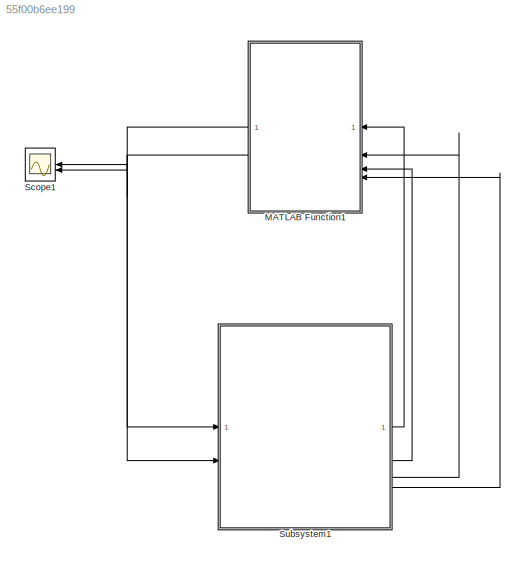
MODEL slx_55f00b6ee199
KIND model
CONFIG AbsTol = 1e-3
CONFIG EnableMultiTasking = on
CONFIG FixedStep = auto
CONFIG MaxStep = 1/60
CONFIG MinStep = auto
CONFIG RelTol = 1e-3
CONFIG SampleTimeConstraint = Unconstrained
CONFIG SolverName = VariableStepAuto
CONFIG StartTime = 0.0
CONFIG StopTime = 10.0
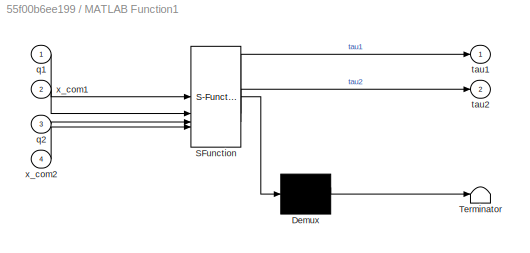
BLOCK [SubSystem] MATLAB Function1
  ErrorFcn = Stateflow.Translate.translate
  LibrarySourceBlock = simulink/User-Defined\nFunctions/MATLAB Function
  PermitHierarchicalResolution = ExplicitOnly
  SFBlockType = MATLAB Function
  TreatAsAtomicUnit = on
BLOCK [Demux] MATLAB Function1/ Demux 
  Outputs = 1
BLOCK [S-Function] MATLAB Function1/ SFunction 
  EnableBusSupport = on
  FunctionName = sf_sfun
  PortCounts = [4 3]
  SFcnIsStateOwnerBlock = off
  SFunctionDeploymentMode = off
  Tag = Stateflow S-Function 1
BLOCK [Terminator] MATLAB Function1/ Terminator 
BLOCK [Inport] MATLAB Function1/q1
BLOCK [Inport] MATLAB Function1/q2
  Port = 3
BLOCK [Outport] MATLAB Function1/tau1
BLOCK [Outport] MATLAB Function1/tau2
  Port = 2
BLOCK [Inport] MATLAB Function1/x_com1
  Port = 2
BLOCK [Inport] MATLAB Function1/x_com2
  Port = 4
BLOCK [Scope] Scope1
  Floating = off
  NumInputPorts = 2
  ScopeSpecificationString = Simulink.scopes.TimeScopeBlockCfg('CurrentConfiguration', extmgr.ConfigurationSet(extmgr.Configuration('Core','General UI',true),extmgr.Configuration('Core','Source UI',true),extmgr.Configuration('Sources','WiredSimulink',true,'DataLoggingVariableName','ScopeData1'),extmgr.Configuration('Visuals','Time Domain',true,'SerializedDisplays',{struct('MinYLimReal','-889.57867','MaxYLimReal','-106.06189',...<+1447ch>
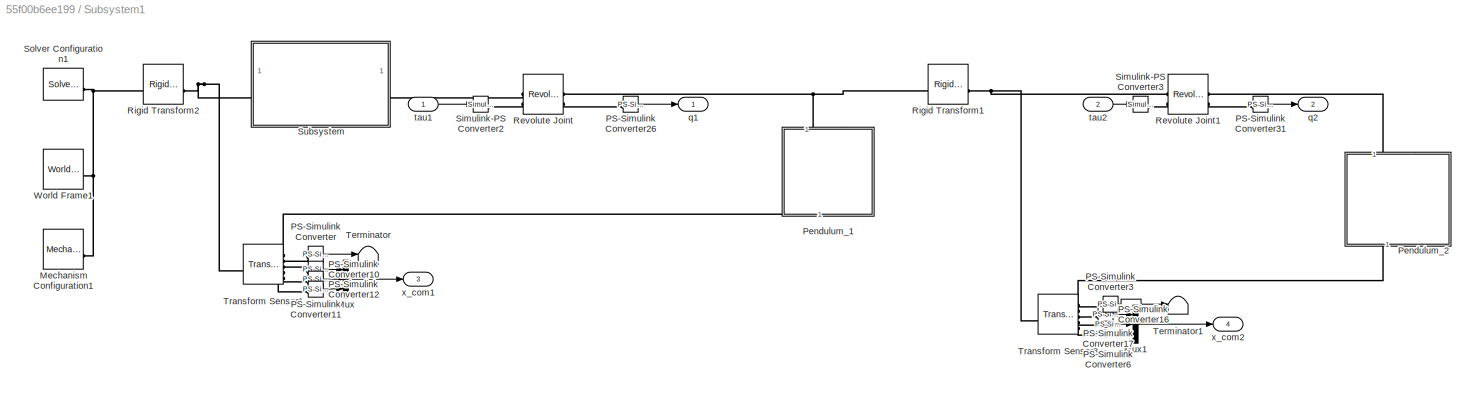
BLOCK [SubSystem] Subsystem1
BLOCK [Reference] Subsystem1/Mechanism Configuration1  REF=sm_lib/Utilities/Mechanism
Configuration
  SourceBlock = sm_lib/Utilities/Mechanism\nConfiguration
  SourceType = Mechanism\nConfiguration
BLOCK [Mux] Subsystem1/Mux
  DisplayOption = bar
  Inputs = 3
BLOCK [Mux] Subsystem1/Mux1
  DisplayOption = bar
  Inputs = 3
BLOCK [Reference] Subsystem1/PS-Simulink Converter  REF=nesl_utility/PS-Simulink
Converter
  SourceBlock = nesl_utility/PS-Simulink\nConverter
  SourceType = PS-Simulink\nConverter
BLOCK [Reference] Subsystem1/PS-Simulink Converter10  REF=nesl_utility/PS-Simulink
Converter
  SourceBlock = nesl_utility/PS-Simulink\nConverter
  SourceType = PS-Simulink\nConverter
BLOCK [Reference] Subsystem1/PS-Simulink Converter11  REF=nesl_utility/PS-Simulink
Converter
  SourceBlock = nesl_utility/PS-Simulink\nConverter
  SourceType = PS-Simulink\nConverter
BLOCK [Reference] Subsystem1/PS-Simulink Converter12  REF=nesl_utility/PS-Simulink
Converter
  SourceBlock = nesl_utility/PS-Simulink\nConverter
  SourceType = PS-Simulink\nConverter
BLOCK [Reference] Subsystem1/PS-Simulink Converter16  REF=nesl_utility/PS-Simulink
Converter
  SourceBlock = nesl_utility/PS-Simulink\nConverter
  SourceType = PS-Simulink\nConverter
BLOCK [Reference] Subsystem1/PS-Simulink Converter17  REF=nesl_utility/PS-Simulink
Converter
  SourceBlock = nesl_utility/PS-Simulink\nConverter
  SourceType = PS-Simulink\nConverter
BLOCK [Reference] Subsystem1/PS-Simulink Converter26  REF=nesl_utility/PS-Simulink
Converter
  SourceBlock = nesl_utility/PS-Simulink\nConverter
  SourceType = PS-Simulink\nConverter
BLOCK [Reference] Subsystem1/PS-Simulink Converter3  REF=nesl_utility/PS-Simulink
Converter
  SourceBlock = nesl_utility/PS-Simulink\nConverter
  SourceType = PS-Simulink\nConverter
BLOCK [Reference] Subsystem1/PS-Simulink Converter31  REF=nesl_utility/PS-Simulink
Converter
  SourceBlock = nesl_utility/PS-Simulink\nConverter
  SourceType = PS-Simulink\nConverter
BLOCK [Reference] Subsystem1/PS-Simulink Converter6  REF=nesl_utility/PS-Simulink
Converter
  SourceBlock = nesl_utility/PS-Simulink\nConverter
  SourceType = PS-Simulink\nConverter
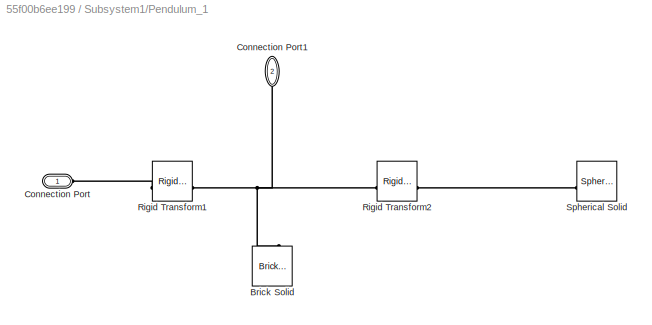
BLOCK [SubSystem] Subsystem1/Pendulum_1
  NameLocation = left
BLOCK [Reference] Subsystem1/Pendulum_1/Brick Solid  REF=sm_lib/Body Elements/Brick Solid
  NameLocation = right
  SourceBlock = sm_lib/Body Elements/Brick Solid
  SourceType = Brick Solid
BLOCK [PMIOPort] Subsystem1/Pendulum_1/Connection Port
  Side = Left
BLOCK [PMIOPort] Subsystem1/Pendulum_1/Connection Port1
  NameLocation = left
  Port = 2
  Side = Right
BLOCK [Reference] Subsystem1/Pendulum_1/Rigid Transform1  REF=sm_lib/Frames and
Transforms/Rigid
Transform
  SourceBlock = sm_lib/Frames and\nTransforms/Rigid\nTransform
  SourceType = Rigid\nTransform
BLOCK [Reference] Subsystem1/Pendulum_1/Rigid Transform2  REF=sm_lib/Frames and
Transforms/Rigid
Transform
  SourceBlock = sm_lib/Frames and\nTransforms/Rigid\nTransform
  SourceType = Rigid\nTransform
BLOCK [Reference] Subsystem1/Pendulum_1/Spherical Solid  REF=sm_lib/Body Elements/Spherical Solid
  SourceBlock = sm_lib/Body Elements/Spherical Solid
  SourceType = Spherical Solid
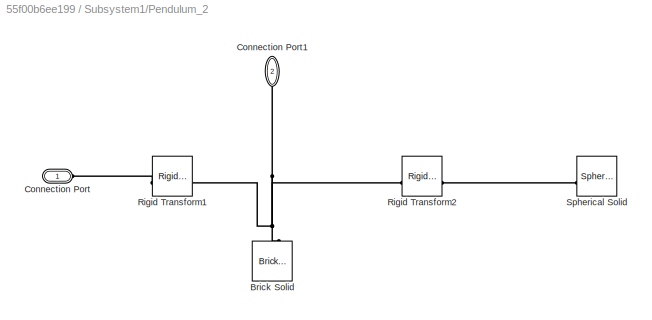
BLOCK [SubSystem] Subsystem1/Pendulum_2
  NameLocation = left
BLOCK [Reference] Subsystem1/Pendulum_2/Brick Solid  REF=sm_lib/Body Elements/Brick Solid
  NameLocation = right
  SourceBlock = sm_lib/Body Elements/Brick Solid
  SourceType = Brick Solid
BLOCK [PMIOPort] Subsystem1/Pendulum_2/Connection Port
  Side = Left
BLOCK [PMIOPort] Subsystem1/Pendulum_2/Connection Port1
  NameLocation = left
  Port = 2
  Side = Right
BLOCK [Reference] Subsystem1/Pendulum_2/Rigid Transform1  REF=sm_lib/Frames and
Transforms/Rigid
Transform
  SourceBlock = sm_lib/Frames and\nTransforms/Rigid\nTransform
  SourceType = Rigid\nTransform
BLOCK [Reference] Subsystem1/Pendulum_2/Rigid Transform2  REF=sm_lib/Frames and
Transforms/Rigid
Transform
  SourceBlock = sm_lib/Frames and\nTransforms/Rigid\nTransform
  SourceType = Rigid\nTransform
BLOCK [Reference] Subsystem1/Pendulum_2/Spherical Solid  REF=sm_lib/Body Elements/Spherical Solid
  SourceBlock = sm_lib/Body Elements/Spherical Solid
  SourceType = Spherical Solid
BLOCK [Reference] Subsystem1/Revolute Joint  REF=sm_lib/Joints/Revolute Joint
  SourceBlock = sm_lib/Joints/Revolute Joint
  SourceType = Revolute Joint
BLOCK [Reference] Subsystem1/Revolute Joint1  REF=sm_lib/Joints/Revolute Joint
  SourceBlock = sm_lib/Joints/Revolute Joint
  SourceType = Revolute Joint
BLOCK [Reference] Subsystem1/Rigid Transform1  REF=sm_lib/Frames and
Transforms/Rigid
Transform
  SourceBlock = sm_lib/Frames and\nTransforms/Rigid\nTransform
  SourceType = Rigid\nTransform
BLOCK [Reference] Subsystem1/Rigid Transform2  REF=sm_lib/Frames and
Transforms/Rigid
Transform
  SourceBlock = sm_lib/Frames and\nTransforms/Rigid\nTransform
  SourceType = Rigid\nTransform
BLOCK [Reference] Subsystem1/Simulink-PS Converter2  REF=nesl_utility/Simulink-PS
Converter
  SourceBlock = nesl_utility/Simulink-PS\nConverter
  SourceType = Simulink-PS\nConverter
BLOCK [Reference] Subsystem1/Simulink-PS Converter3  REF=nesl_utility/Simulink-PS
Converter
  SourceBlock = nesl_utility/Simulink-PS\nConverter
  SourceType = Simulink-PS\nConverter
BLOCK [Reference] Subsystem1/Solver Configuration1  REF=nesl_utility/Solver
Configuration
  SourceBlock = nesl_utility/Solver\nConfiguration
  SourceType = Solver\nConfiguration
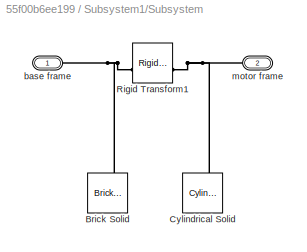
BLOCK [SubSystem] Subsystem1/Subsystem
BLOCK [Reference] Subsystem1/Subsystem/Brick Solid  REF=sm_lib/Body Elements/Brick Solid
  SourceBlock = sm_lib/Body Elements/Brick Solid
  SourceType = Brick Solid
BLOCK [Reference] Subsystem1/Subsystem/Cylindrical Solid  REF=sm_lib/Body Elements/Cylindrical Solid
  NameLocation = right
  SourceBlock = sm_lib/Body Elements/Cylindrical Solid
  SourceType = Cylindrical Solid
BLOCK [Reference] Subsystem1/Subsystem/Rigid Transform1  REF=sm_lib/Frames and
Transforms/Rigid
Transform
  SourceBlock = sm_lib/Frames and\nTransforms/Rigid\nTransform
  SourceType = Rigid\nTransform
BLOCK [PMIOPort] Subsystem1/Subsystem/base frame
  Side = Left
BLOCK [PMIOPort] Subsystem1/Subsystem/motor frame
  Port = 2
  Side = Right
BLOCK [Terminator] Subsystem1/Terminator
BLOCK [Terminator] Subsystem1/Terminator1
BLOCK [Reference] Subsystem1/Transform Sensor1  REF=sm_lib/Frames and
Transforms/Transform
Sensor
  SourceBlock = sm_lib/Frames and\nTransforms/Transform\nSensor
  SourceType = Transform\nSensor
BLOCK [Reference] Subsystem1/Transform Sensor3  REF=sm_lib/Frames and
Transforms/Transform
Sensor
  SourceBlock = sm_lib/Frames and\nTransforms/Transform\nSensor
  SourceType = Transform\nSensor
BLOCK [Reference] Subsystem1/World Frame1  REF=sm_lib/Frames and
Transforms/World Frame
  SourceBlock = sm_lib/Frames and\nTransforms/World Frame
  SourceType = World Frame
BLOCK [Outport] Subsystem1/q1
BLOCK [Outport] Subsystem1/q2
  Port = 2
BLOCK [Inport] Subsystem1/tau1
BLOCK [Inport] Subsystem1/tau2
  Port = 2
BLOCK [Outport] Subsystem1/x_com1
  Port = 3
BLOCK [Outport] Subsystem1/x_com2
  Port = 4
NET MATLAB Function1:1 -> Scope1:1, Subsystem1:1
NET MATLAB Function1:2 -> Scope1:2, Subsystem1:2
LINE Subsystem1/Mux1:1 -> Subsystem1/x_com2:1
LINE Subsystem1/Mux:1 -> Subsystem1/x_com1:1
LINE Subsystem1/PS-Simulink Converter10:1 -> Subsystem1/Mux:1
LINE Subsystem1/PS-Simulink Converter11:1 -> Subsystem1/Mux:2
LINE Subsystem1/PS-Simulink Converter12:1 -> Subsystem1/Mux:3
LINE Subsystem1/PS-Simulink Converter16:1 -> Subsystem1/Mux1:1
LINE Subsystem1/PS-Simulink Converter17:1 -> Subsystem1/Mux1:2
LINE Subsystem1/PS-Simulink Converter26:1 -> Subsystem1/q1:1
LINE Subsystem1/PS-Simulink Converter31:1 -> Subsystem1/q2:1
LINE Subsystem1/PS-Simulink Converter3:1 -> Subsystem1/Terminator1:1
LINE Subsystem1/PS-Simulink Converter6:1 -> Subsystem1/Mux1:3
LINE Subsystem1/PS-Simulink Converter:1 -> Subsystem1/Terminator:1
LINE Subsystem1/tau1:1 -> Subsystem1/Simulink-PS Converter2:1
LINE Subsystem1/tau2:1 -> Subsystem1/Simulink-PS Converter3:1
LINE Subsystem1:1 -> MATLAB Function1:1
LINE Subsystem1:2 -> MATLAB Function1:3
LINE Subsystem1:3 -> MATLAB Function1:2
LINE Subsystem1:4 -> MATLAB Function1:4
PNET net1: Subsystem1/Mechanism Configuration1:RConn1 -- Subsystem1/Rigid Transform2:LConn1 -- Subsystem1/Solver Configuration1:RConn1 -- Subsystem1/World Frame1:RConn1
PLINE Subsystem1/PS-Simulink Converter10:LConn1 -- Subsystem1/Transform Sensor1:RConn3
PLINE Subsystem1/PS-Simulink Converter11:LConn1 -- Subsystem1/Transform Sensor1:RConn4
PLINE Subsystem1/PS-Simulink Converter12:LConn1 -- Subsystem1/Transform Sensor1:RConn5
PLINE Subsystem1/PS-Simulink Converter16:LConn1 -- Subsystem1/Transform Sensor3:RConn3
PLINE Subsystem1/PS-Simulink Converter17:LConn1 -- Subsystem1/Transform Sensor3:RConn4
PLINE Subsystem1/PS-Simulink Converter26:LConn1 -- Subsystem1/Revolute Joint:RConn2
PLINE Subsystem1/PS-Simulink Converter31:LConn1 -- Subsystem1/Revolute Joint1:RConn2
PLINE Subsystem1/PS-Simulink Converter3:LConn1 -- Subsystem1/Transform Sensor3:RConn2
PLINE Subsystem1/PS-Simulink Converter6:LConn1 -- Subsystem1/Transform Sensor3:RConn5
PLINE Subsystem1/PS-Simulink Converter:LConn1 -- Subsystem1/Transform Sensor1:RConn2
PNET net2: Subsystem1/Pendulum_1/Brick Solid:RConn1 -- Subsystem1/Pendulum_1/Connection Port1:RConn1 -- Subsystem1/Pendulum_1/Rigid Transform1:LConn1 -- Subsystem1/Pendulum_1/Rigid Transform2:LConn1
PLINE Subsystem1/Pendulum_1/Connection Port:RConn1 -- Subsystem1/Pendulum_1/Rigid Transform1:RConn1
PLINE Subsystem1/Pendulum_1/Rigid Transform2:RConn1 -- Subsystem1/Pendulum_1/Spherical Solid:RConn1
PNET net3: Subsystem1/Pendulum_1:LConn1 -- Subsystem1/Revolute Joint:RConn1 -- Subsystem1/Rigid Transform1:LConn1
PLINE Subsystem1/Pendulum_1:RConn1 -- Subsystem1/Transform Sensor1:RConn1
PNET net4: Subsystem1/Pendulum_2/Brick Solid:RConn1 -- Subsystem1/Pendulum_2/Connection Port1:RConn1 -- Subsystem1/Pendulum_2/Rigid Transform1:LConn1 -- Subsystem1/Pendulum_2/Rigid Transform2:LConn1
PLINE Subsystem1/Pendulum_2/Connection Port:RConn1 -- Subsystem1/Pendulum_2/Rigid Transform1:RConn1
PLINE Subsystem1/Pendulum_2/Rigid Transform2:RConn1 -- Subsystem1/Pendulum_2/Spherical Solid:RConn1
PLINE Subsystem1/Pendulum_2:LConn1 -- Subsystem1/Revolute Joint1:RConn1
PLINE Subsystem1/Pendulum_2:RConn1 -- Subsystem1/Transform Sensor3:RConn1
PNET net5: Subsystem1/Revolute Joint1:LConn1 -- Subsystem1/Rigid Transform1:RConn1 -- Subsystem1/Transform Sensor3:LConn1
PLINE Subsystem1/Revolute Joint1:LConn2 -- Subsystem1/Simulink-PS Converter3:RConn1
PLINE Subsystem1/Revolute Joint:LConn1 -- Subsystem1/Subsystem:RConn1
PLINE Subsystem1/Revolute Joint:LConn2 -- Subsystem1/Simulink-PS Converter2:RConn1
PNET net6: Subsystem1/Rigid Transform2:RConn1 -- Subsystem1/Subsystem:LConn1 -- Subsystem1/Transform Sensor1:LConn1
PNET net7: Subsystem1/Subsystem/Brick Solid:RConn1 -- Subsystem1/Subsystem/Rigid Transform1:LConn1 -- Subsystem1/Subsystem/base frame:RConn1
PNET net8: Subsystem1/Subsystem/Cylindrical Solid:RConn1 -- Subsystem1/Subsystem/Rigid Transform1:RConn1 -- Subsystem1/Subsystem/motor frame:RConn1
note: NET lines group one-source signal fan-out (src -> all destinations, sorted); 1:1 wires keep LINE; PNET lines group multi-terminal physical nets as a canonical sorted terminal list (undirected conserving connections); 2-terminal nets keep the pairwise PLINE form
CHART MATLAB Function1 states=1 transitions=1
  STATE_LABEL 'eML_blk_kernel()'
  STATE_LABEL 'SCRIPT:\nfunction [tau1, tau2]= fcn(q1, x_com1, q2, x_com2)\nd_q1 = 0;\ndd_q1 = 0;\n\nd_q2 = 0;\ndd_q2 = 0;\n\nL1 = 20; % lenght link1\nL2 = 25; % lenght link2\n\nm1 = 2.2; % mass of the link 1\nm2 = 1.5; % mass of the link 2\nm3 = 0; % mass of the shere 1\nm4 = 0; % mass of the shere 2\n\ng = [0; -9.81; 0];\n\nP_1_0 = [0; 0; 10];\nP_2_1 = [L1; 0; 0];\nP_3_2 = [L2; 0; 0];\n\nR_0_1 = [cos(q1), -sin(q1), 0;\n         sin(...<+2036ch>'
CHART  states=0 transitions=0
